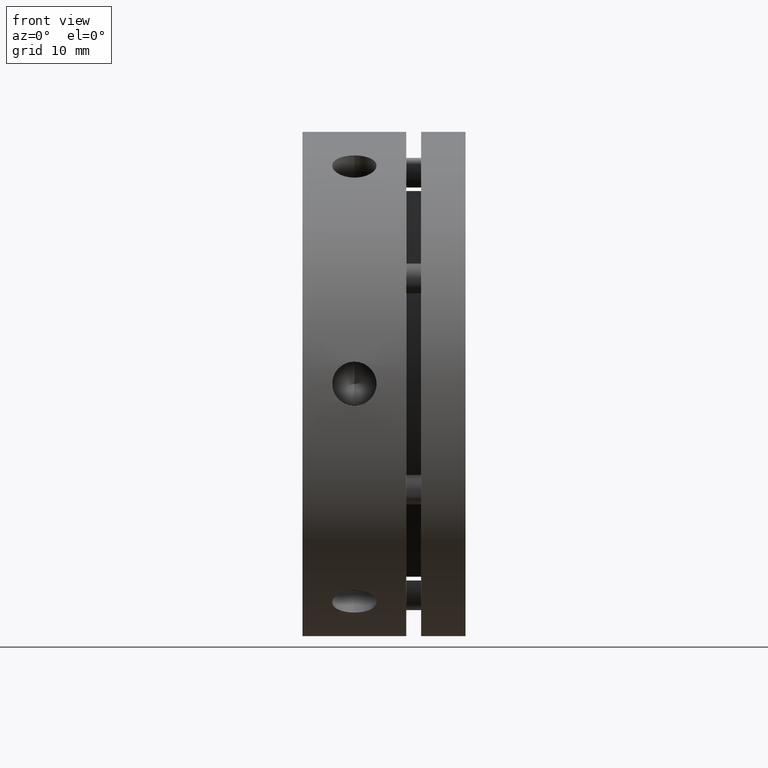
[diagram: clean part render]
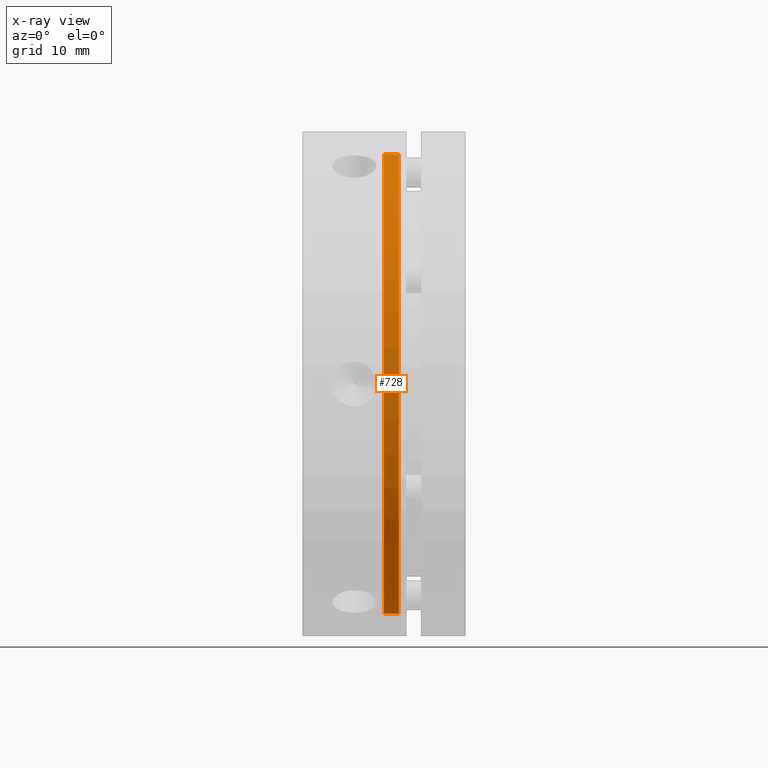
[diagram: x-ray — body ghosted, one internal face saturated and labeled with its STEP entity id]
A machine part, front view, then the same camera in x-ray: the body is ghosted and one INTERNAL B-rep face — a face not visible from any outside direction — is saturated and labeled: STEP entity #728.
In plain terms, the highlighted cylindrical surface (partial cylindrical patch) has radius 31 mm, axis along (-1, 0, 0).
Its self-contained STEP definition (entity closure, byte-faithful):
#401 = FACE_OUTER_BOUND ( 'NONE', #1664, .T. ) ;
#410 = CYLINDRICAL_SURFACE ( 'NONE', #1183, 31.00000000000000700 ) ;
#450 = CIRCLE ( 'NONE', #1194, 31.00000000000000700 ) ;
#693 = VERTEX_POINT ( 'NONE', #1597 ) ;
#694 = VERTEX_POINT ( 'NONE', #1598 ) ;
#699 = VERTEX_POINT ( 'NONE', #1603 ) ;
#700 = VERTEX_POINT ( 'NONE', #1604 ) ;
#728 = ADVANCED_FACE ( 'NONE', ( #401 ), #410, .F. ) ;
#1059 = EDGE_CURVE ( 'NONE', #694, #693, #450, .T. ) ;
#1183 = AXIS2_PLACEMENT_3D ( 'NONE', #2425, #2423, #2421 ) ;
#1194 = AXIS2_PLACEMENT_3D ( 'NONE', #2534, #2535, #2536 ) ;
#1597 = CARTESIAN_POINT ( 'NONE',  ( 11.00000000000001400, 0.0000000000000000000, 31.00000000000000700 ) ) ;
#1598 = CARTESIAN_POINT ( 'NONE',  ( 11.00000000000001400, 3.796405077356795900E-015, -31.00000000000000700 ) ) ;
#1603 = CARTESIAN_POINT ( 'NONE',  ( 13.00000000000000900, 3.796405077356795900E-015, -31.00000000000000700 ) ) ;
#1604 = CARTESIAN_POINT ( 'NONE',  ( 13.00000000000000900, 0.0000000000000000000, 31.00000000000000700 ) ) ;
#1664 = EDGE_LOOP ( 'NONE', ( #2051, #2052, #2303, #2228 ) ) ;
#1745 = AXIS2_PLACEMENT_3D ( 'NONE', #3301, #3302, #3303 ) ;
#2051 = ORIENTED_EDGE ( 'NONE', *, *, #3645, .T. ) ;
#2052 = ORIENTED_EDGE ( 'NONE', *, *, #4610, .T. ) ;
#2228 = ORIENTED_EDGE ( 'NONE', *, *, #3609, .F. ) ;
#2303 = ORIENTED_EDGE ( 'NONE', *, *, #1059, .T. ) ;
#2421 = DIRECTION ( 'NONE',  ( 0.0000000000000000000, 0.0000000000000000000, 1.000000000000000000 ) ) ;
#2423 = DIRECTION ( 'NONE',  ( -1.000000000000000000, 0.0000000000000000000, 0.0000000000000000000 ) ) ;
#2425 = CARTESIAN_POINT ( 'NONE',  ( 12.00000000000001100, 0.0000000000000000000, 0.0000000000000000000 ) ) ;
#2534 = CARTESIAN_POINT ( 'NONE',  ( 11.00000000000001400, 0.0000000000000000000, 0.0000000000000000000 ) ) ;
#2535 = DIRECTION ( 'NONE',  ( -1.000000000000000000, 0.0000000000000000000, 0.0000000000000000000 ) ) ;
#2536 = DIRECTION ( 'NONE',  ( 0.0000000000000000000, 0.0000000000000000000, 1.000000000000000000 ) ) ;
#3206 = CARTESIAN_POINT ( 'NONE',  ( 12.00000000000001100, 0.0000000000000000000, 31.00000000000000700 ) ) ;
#3210 = DIRECTION ( 'NONE',  ( -1.000000000000000000, 0.0000000000000000000, 0.0000000000000000000 ) ) ;
#3301 = CARTESIAN_POINT ( 'NONE',  ( 13.00000000000000900, 0.0000000000000000000, 0.0000000000000000000 ) ) ;
#3302 = DIRECTION ( 'NONE',  ( 1.000000000000000000, -0.0000000000000000000, -0.0000000000000000000 ) ) ;
#3303 = DIRECTION ( 'NONE',  ( 0.0000000000000000000, 0.0000000000000000000, 1.000000000000000000 ) ) ;
#3609 = EDGE_CURVE ( 'NONE', #700, #693, #3720, .T. ) ;
#3645 = EDGE_CURVE ( 'NONE', #700, #699, #3774, .T. ) ;
#3720 = LINE ( 'NONE', #3206, #3721 ) ;
#3721 = VECTOR ( 'NONE', #3210, 1000.000000000000000 ) ;
#3774 = CIRCLE ( 'NONE', #1745, 31.00000000000000700 ) ;
#3816 = LINE ( 'NONE', #4054, #3824 ) ;
#3824 = VECTOR ( 'NONE', #4059, 1000.000000000000000 ) ;
#4054 = CARTESIAN_POINT ( 'NONE',  ( 12.00000000000001100, 3.796405077356795900E-015, -31.00000000000000700 ) ) ;
#4059 = DIRECTION ( 'NONE',  ( -1.000000000000000000, 0.0000000000000000000, 0.0000000000000000000 ) ) ;
#4610 = EDGE_CURVE ( 'NONE', #699, #694, #3816, .T. ) ;